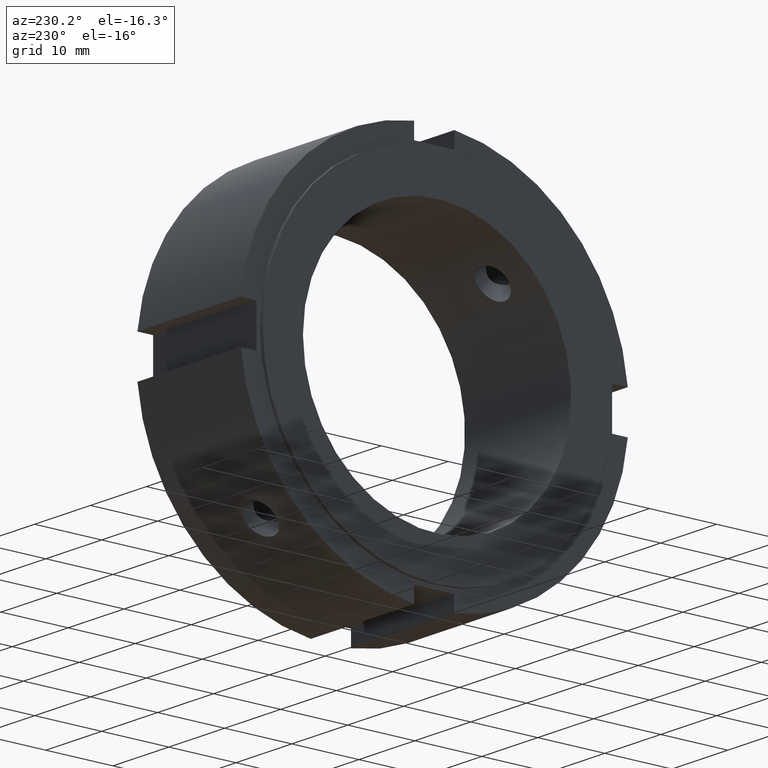
[diagram: clean part render]
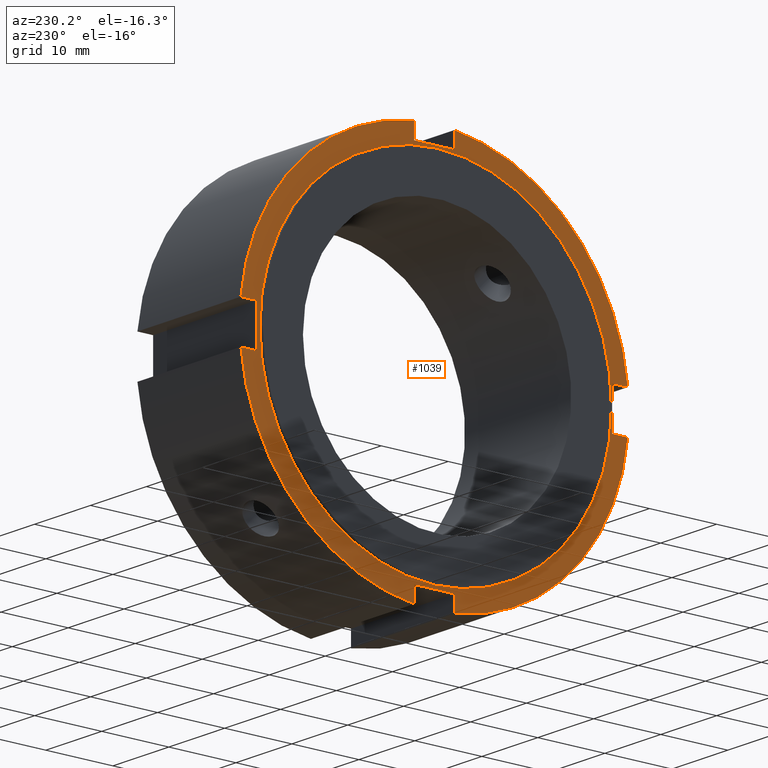
[diagram: same view with one face highlighted and labeled with its STEP entity id]
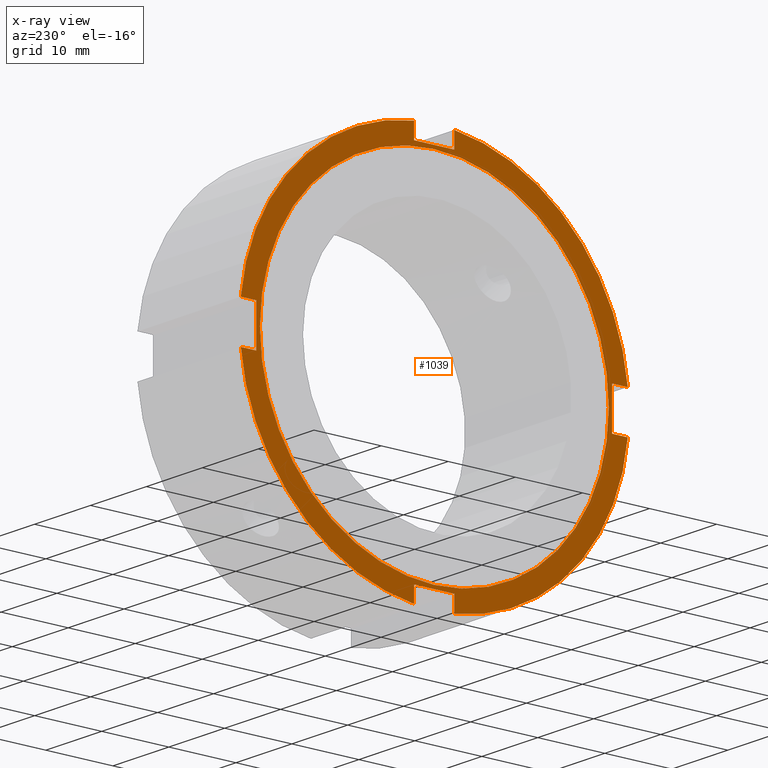
[diagram: x-ray of the same camera — body ghosted, the highlighted face saturated]
A machine part, auxiliary view. The second image highlights one B-rep face of the part: STEP entity #1039.
The next image is the same camera in x-ray: the body ghosted, the highlighted face saturated — about 0% of this face is hidden behind the body in this view.
In plain terms, the highlighted planar face has unit normal (-1, 0, 0).
Its self-contained STEP definition (entity closure, byte-faithful):
#419=CARTESIAN_POINT('',(0.499999999999994,-3.000000000000004,-26.500000000000004));
#420=VERTEX_POINT('',#419);
#421=CARTESIAN_POINT('',(0.499999999999994,-3.000000000000004,-28.844410203711917));
#422=VERTEX_POINT('',#421);
#423=CARTESIAN_POINT('',(0.499999999999994,-3.000000000000003,-26.500000000000004));
#424=DIRECTION('',(0.0,0.0,-1.0));
#425=VECTOR('',#424,2.344410203711913);
#426=LINE('',#423,#425);
#427=EDGE_CURVE('',#420,#422,#426,.T.);
#459=CARTESIAN_POINT('',(0.499999999999994,2.999999999999994,-28.844410203711917));
#460=VERTEX_POINT('',#459);
#461=CARTESIAN_POINT('',(0.499999999999994,2.999999999999994,-26.500000000000004));
#462=VERTEX_POINT('',#461);
#463=CARTESIAN_POINT('',(0.499999999999994,2.999999999999993,-28.844410203711917));
#464=DIRECTION('',(0.0,0.0,1.0));
#465=VECTOR('',#464,2.344410203711913);
#466=LINE('',#463,#465);
#467=EDGE_CURVE('',#460,#462,#466,.T.);
#499=CARTESIAN_POINT('',(0.499999999999994,2.999999999999995,-26.5));
#500=DIRECTION('',(0.0,-1.0,0.0));
#501=VECTOR('',#500,6.0);
#502=LINE('',#499,#501);
#503=EDGE_CURVE('',#462,#420,#502,.T.);
#521=CARTESIAN_POINT('',(0.499999999999994,-26.500000000000004,3.000000000000003));
#522=VERTEX_POINT('',#521);
#523=CARTESIAN_POINT('',(0.499999999999994,-28.844410203711917,3.000000000000003));
#524=VERTEX_POINT('',#523);
#525=CARTESIAN_POINT('',(0.499999999999994,-26.5,3.000000000000002));
#526=DIRECTION('',(0.0,-1.0,0.0));
#527=VECTOR('',#526,2.344410203711917);
#528=LINE('',#525,#527);
#529=EDGE_CURVE('',#522,#524,#528,.T.);
#561=CARTESIAN_POINT('',(0.499999999999994,-28.844410203711917,-2.999999999999996));
#562=VERTEX_POINT('',#561);
#563=CARTESIAN_POINT('',(0.499999999999994,-26.500000000000004,-2.999999999999996));
#564=VERTEX_POINT('',#563);
#565=CARTESIAN_POINT('',(0.499999999999994,-28.84441020371192,-2.999999999999996));
#566=DIRECTION('',(0.0,1.0,0.0));
#567=VECTOR('',#566,2.344410203711917);
#568=LINE('',#565,#567);
#569=EDGE_CURVE('',#562,#564,#568,.T.);
#601=CARTESIAN_POINT('',(0.499999999999994,-26.500000000000004,-2.999999999999996));
#602=DIRECTION('',(0.0,0.0,1.0));
#603=VECTOR('',#602,5.999999999999998);
#604=LINE('',#601,#603);
#605=EDGE_CURVE('',#564,#522,#604,.T.);
#623=CARTESIAN_POINT('',(0.499999999999994,3.000000000000001,26.500000000000004));
#624=VERTEX_POINT('',#623);
#625=CARTESIAN_POINT('',(0.499999999999994,3.000000000000001,28.844410203711917));
#626=VERTEX_POINT('',#625);
#627=CARTESIAN_POINT('',(0.499999999999994,3.000000000000004,26.500000000000004));
#628=DIRECTION('',(0.0,0.0,1.0));
#629=VECTOR('',#628,2.344410203711913);
#630=LINE('',#627,#629);
#631=EDGE_CURVE('',#624,#626,#630,.T.);
#663=CARTESIAN_POINT('',(0.499999999999994,-2.999999999999998,28.844410203711917));
#664=VERTEX_POINT('',#663);
#665=CARTESIAN_POINT('',(0.499999999999994,-2.999999999999998,26.500000000000004));
#666=VERTEX_POINT('',#665);
#667=CARTESIAN_POINT('',(0.499999999999994,-2.999999999999997,28.844410203711917));
#668=DIRECTION('',(0.0,0.0,-1.0));
#669=VECTOR('',#668,2.344410203711913);
#670=LINE('',#667,#669);
#671=EDGE_CURVE('',#664,#666,#670,.T.);
#703=CARTESIAN_POINT('',(0.499999999999994,-3.0,26.500000000000004));
#704=DIRECTION('',(0.0,1.0,0.0));
#705=VECTOR('',#704,6.0);
#706=LINE('',#703,#705);
#707=EDGE_CURVE('',#666,#624,#706,.T.);
#735=CARTESIAN_POINT('',(0.499999999999994,28.844410203711917,2.999999999999999));
#736=VERTEX_POINT('',#735);
#743=CARTESIAN_POINT('',(0.499999999999994,0.0,0.0));
#744=DIRECTION('',(1.0,0.0,0.0));
#745=DIRECTION('',(0.0,1.0,0.0));
#746=AXIS2_PLACEMENT_3D('',#743,#744,#745);
#747=CIRCLE('',#746,29.0);
#748=EDGE_CURVE('',#736,#626,#747,.T.);
#767=CARTESIAN_POINT('',(0.499999999999994,0.0,0.0));
#768=DIRECTION('',(1.0,0.0,0.0));
#769=DIRECTION('',(0.0,1.0,0.0));
#770=AXIS2_PLACEMENT_3D('',#767,#768,#769);
#771=CIRCLE('',#770,29.0);
#772=EDGE_CURVE('',#664,#524,#771,.T.);
#786=CARTESIAN_POINT('',(0.499999999999994,28.844410203711917,-2.999999999999999));
#787=VERTEX_POINT('',#786);
#788=CARTESIAN_POINT('',(0.499999999999994,0.0,0.0));
#789=DIRECTION('',(1.0,0.0,0.0));
#790=DIRECTION('',(0.0,1.0,0.0));
#791=AXIS2_PLACEMENT_3D('',#788,#789,#790);
#792=CIRCLE('',#791,29.0);
#793=EDGE_CURVE('',#460,#787,#792,.T.);
#830=CARTESIAN_POINT('',(0.499999999999994,0.0,0.0));
#831=DIRECTION('',(1.0,0.0,0.0));
#832=DIRECTION('',(0.0,1.0,0.0));
#833=AXIS2_PLACEMENT_3D('',#830,#831,#832);
#834=CIRCLE('',#833,29.0);
#835=EDGE_CURVE('',#562,#422,#834,.T.);
#905=CARTESIAN_POINT('',(0.499999999999994,26.500000000000004,-2.999999999999999));
#906=VERTEX_POINT('',#905);
#907=CARTESIAN_POINT('',(0.499999999999994,26.5,-2.999999999999999));
#908=DIRECTION('',(0.0,1.0,0.0));
#909=VECTOR('',#908,2.344410203711917);
#910=LINE('',#907,#909);
#911=EDGE_CURVE('',#906,#787,#910,.T.);
#929=CARTESIAN_POINT('',(0.499999999999994,26.500000000000004,2.999999999999999));
#930=VERTEX_POINT('',#929);
#931=CARTESIAN_POINT('',(0.499999999999994,28.844410203711917,2.999999999999999));
#932=DIRECTION('',(0.0,-1.0,0.0));
#933=VECTOR('',#932,2.344410203711917);
#934=LINE('',#931,#933);
#935=EDGE_CURVE('',#736,#930,#934,.T.);
#953=CARTESIAN_POINT('',(0.499999999999994,26.500000000000004,2.999999999999999));
#954=DIRECTION('',(0.0,0.0,-1.0));
#955=VECTOR('',#954,5.999999999999998);
#956=LINE('',#953,#955);
#957=EDGE_CURVE('',#930,#906,#956,.T.);
#998=CARTESIAN_POINT('',(0.499999999999994,25.999999999999996,0.0));
#999=VERTEX_POINT('',#998);
#1000=CARTESIAN_POINT('',(0.499999999999994,0.0,0.0));
#1001=DIRECTION('',(1.0,0.0,0.0));
#1002=DIRECTION('',(0.0,1.0,0.0));
#1003=AXIS2_PLACEMENT_3D('',#1000,#1001,#1002);
#1004=CIRCLE('',#1003,25.999999999999996);
#1005=EDGE_CURVE('',#999,#999,#1004,.T.);
#1013=CARTESIAN_POINT('',(0.499999999999994,27.5,0.0));
#1014=DIRECTION('',(-1.0,0.0,0.0));
#1015=DIRECTION('',(0.0,0.0,1.0));
#1016=AXIS2_PLACEMENT_3D('',#1013,#1014,#1015);
#1017=PLANE('',#1016);
#1018=ORIENTED_EDGE('',*,*,#427,.T.);
#1019=ORIENTED_EDGE('',*,*,#835,.F.);
#1020=ORIENTED_EDGE('',*,*,#569,.T.);
#1021=ORIENTED_EDGE('',*,*,#605,.T.);
#1022=ORIENTED_EDGE('',*,*,#529,.T.);
#1023=ORIENTED_EDGE('',*,*,#772,.F.);
#1024=ORIENTED_EDGE('',*,*,#671,.T.);
#1025=ORIENTED_EDGE('',*,*,#707,.T.);
#1026=ORIENTED_EDGE('',*,*,#631,.T.);
#1027=ORIENTED_EDGE('',*,*,#748,.F.);
#1028=ORIENTED_EDGE('',*,*,#935,.T.);
#1029=ORIENTED_EDGE('',*,*,#957,.T.);
#1030=ORIENTED_EDGE('',*,*,#911,.T.);
#1031=ORIENTED_EDGE('',*,*,#793,.F.);
#1032=ORIENTED_EDGE('',*,*,#467,.T.);
#1033=ORIENTED_EDGE('',*,*,#503,.T.);
#1034=EDGE_LOOP('',(#1018,#1019,#1020,#1021,#1022,#1023,#1024,#1025,#1026,#1027,#1028,#1029,#1030,#1031,#1032,#1033));
#1035=FACE_OUTER_BOUND('',#1034,.T.);
#1036=ORIENTED_EDGE('',*,*,#1005,.T.);
#1037=EDGE_LOOP('',(#1036));
#1038=FACE_BOUND('',#1037,.T.);
#1039=ADVANCED_FACE('',(#1035,#1038),#1017,.T.);